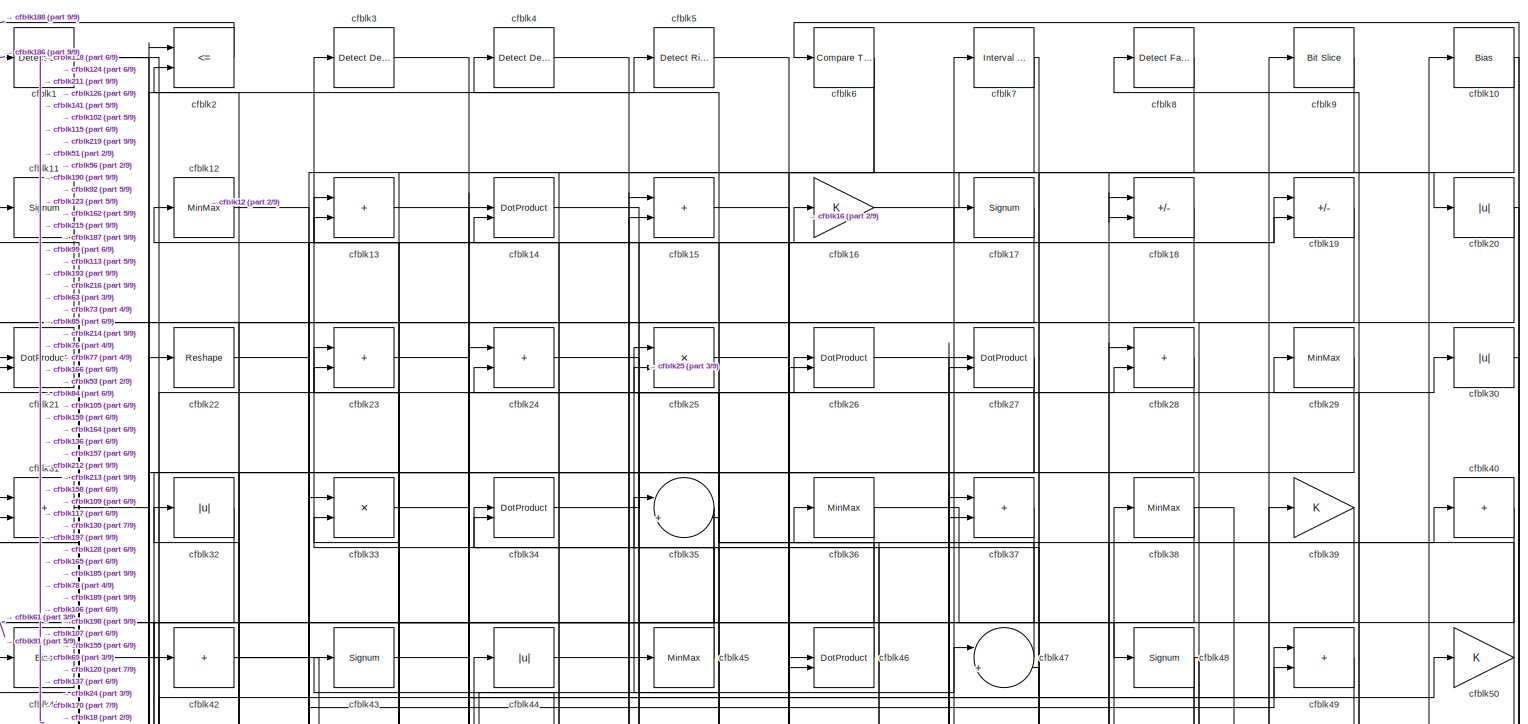
[diagram: root canvas - part 1/9, full width, top band]
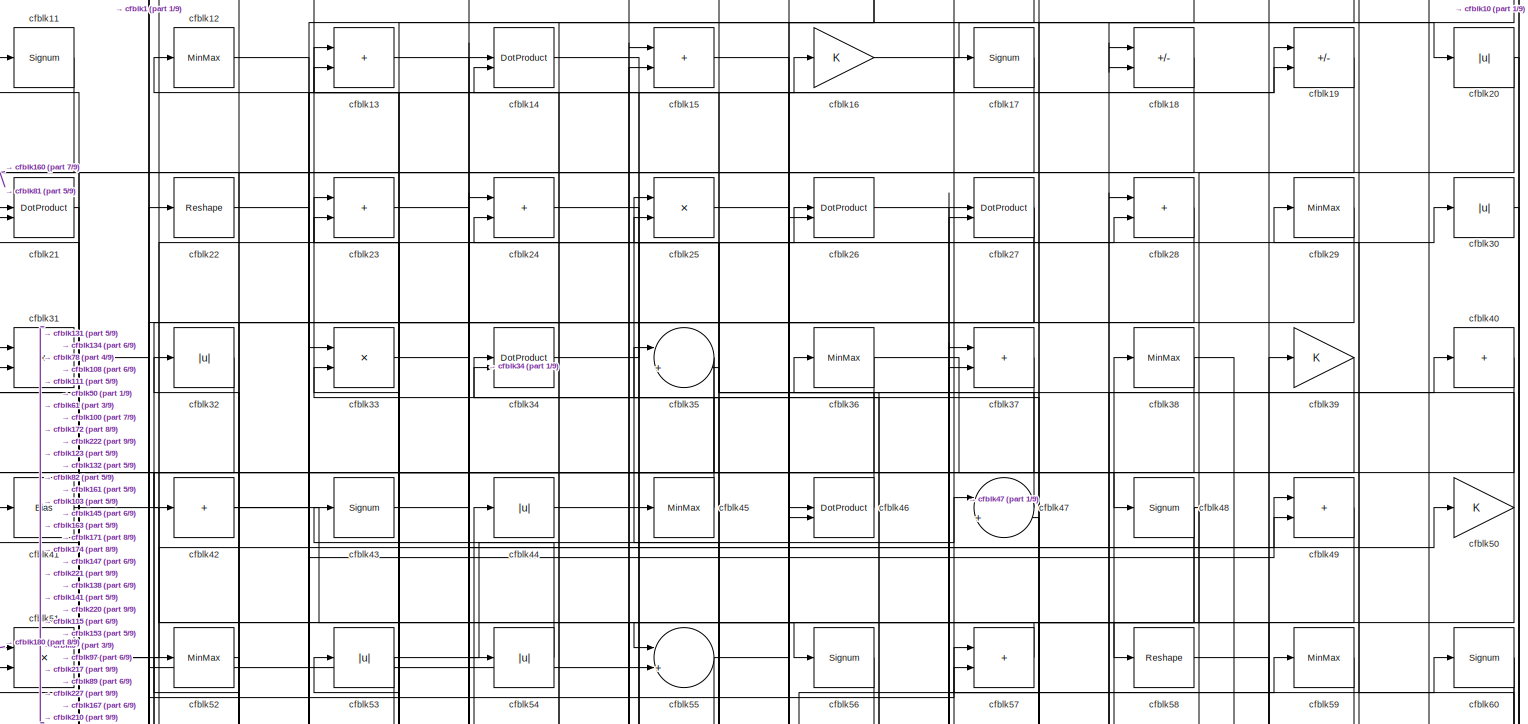
[diagram: root canvas - part 2/9, full width, top band]
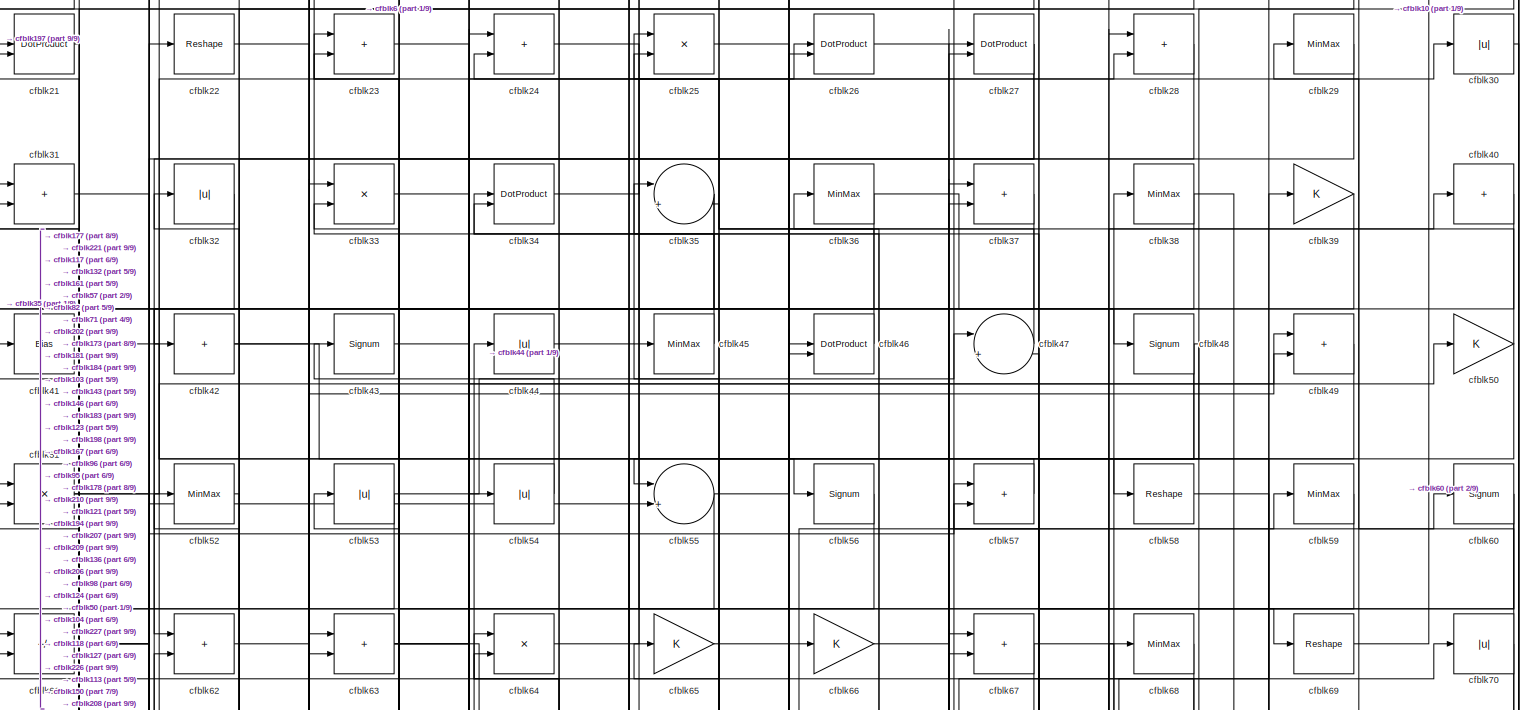
[diagram: root canvas - part 3/9, full width, top band]
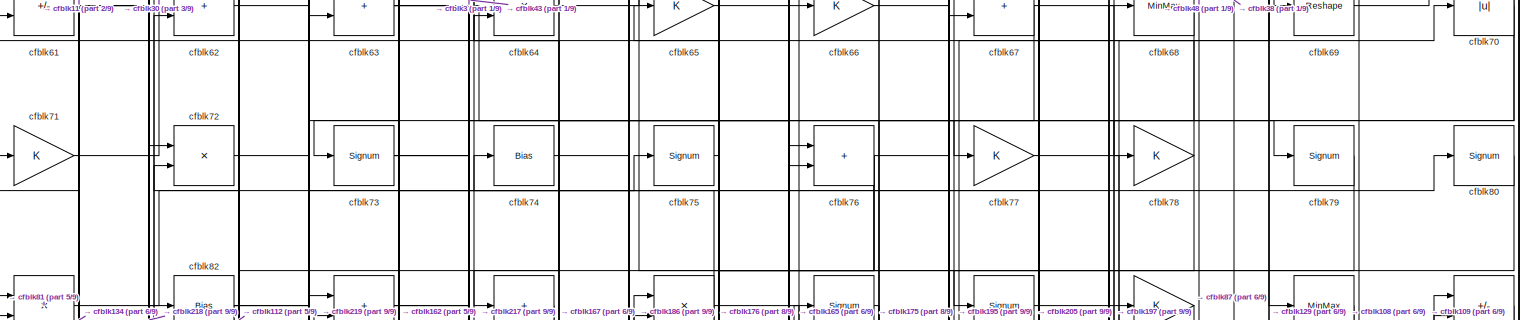
[diagram: root canvas - part 4/9, full width, top band]
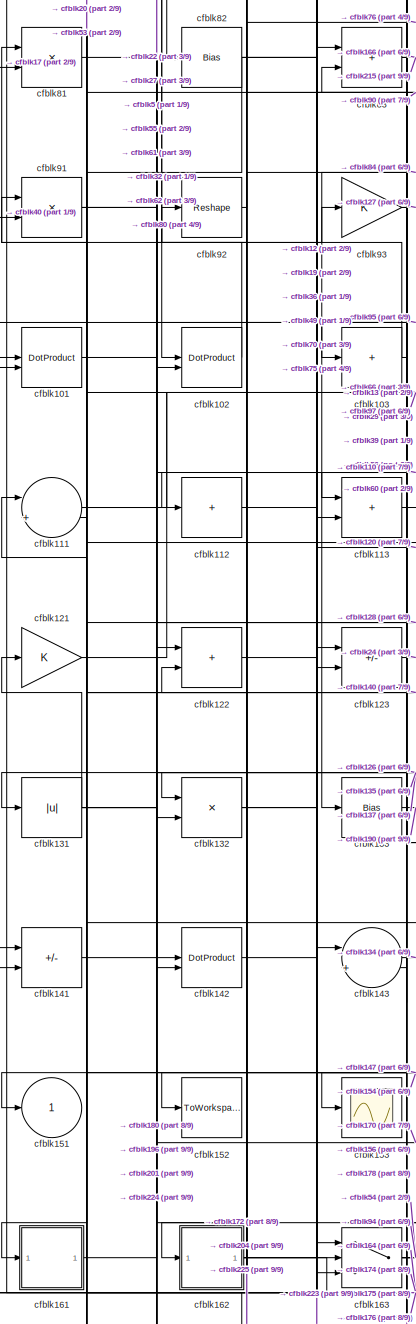
[diagram: root canvas - part 5/9, middle left region]
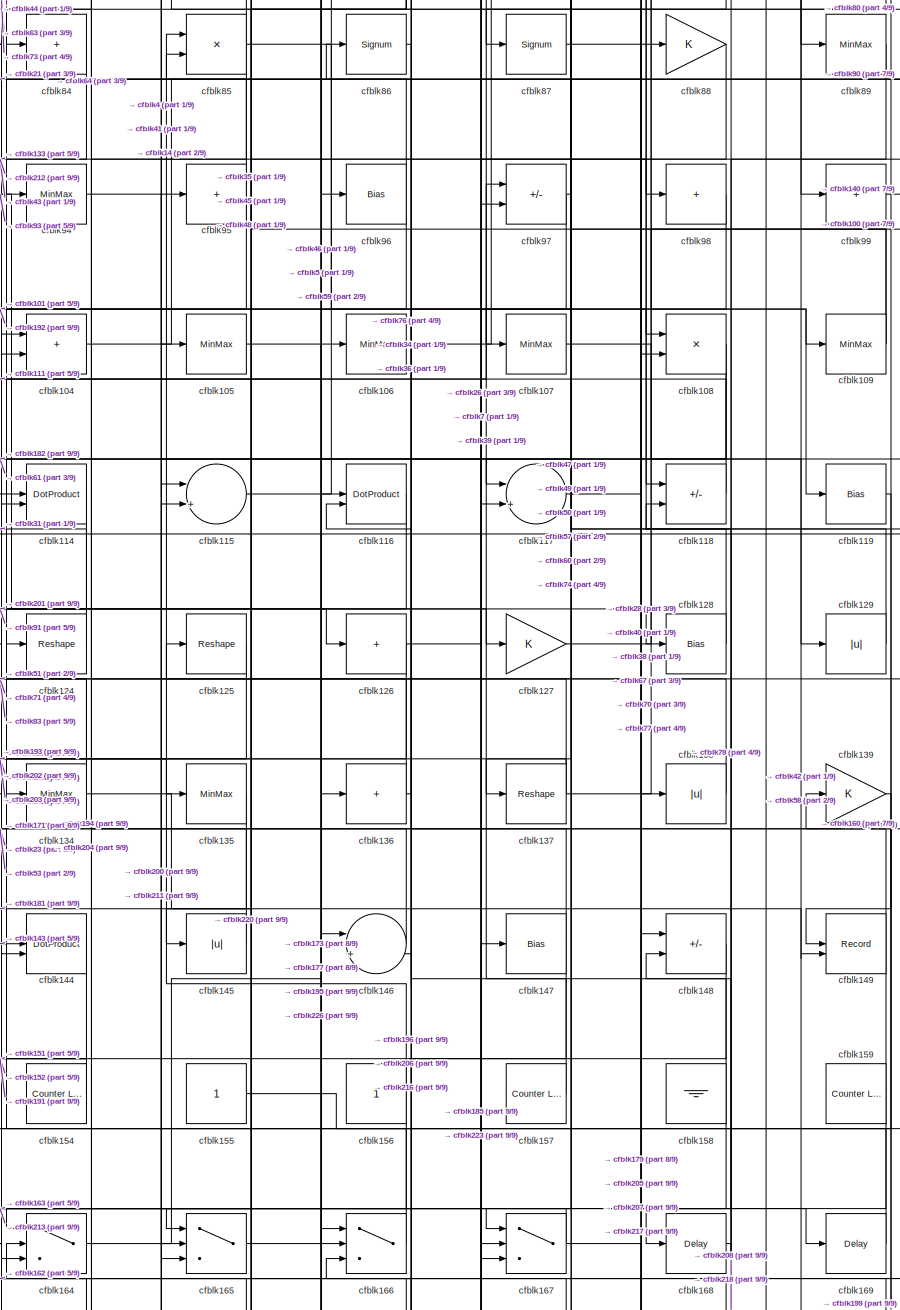
[diagram: root canvas - part 6/9, central region]
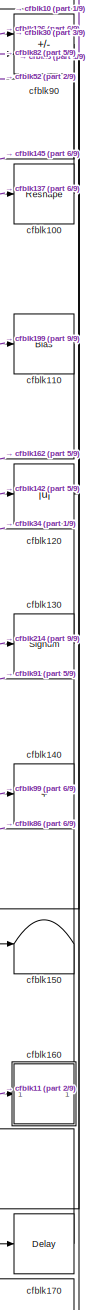
[diagram: root canvas - part 7/9, middle right region]
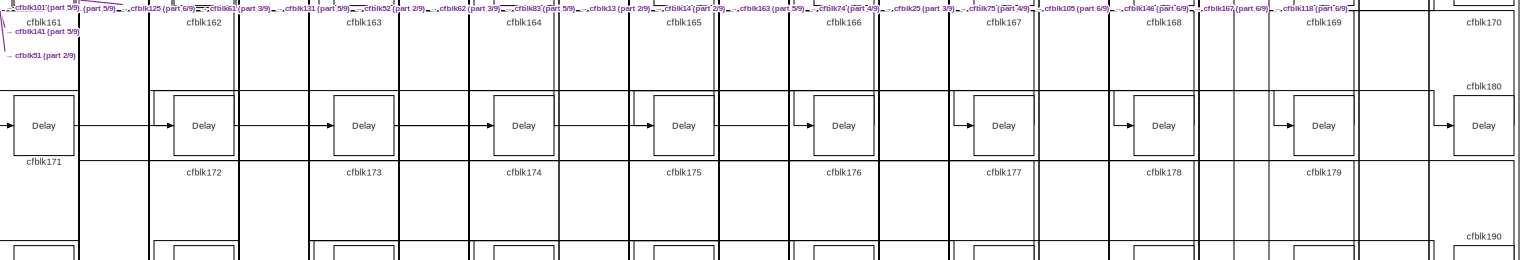
[diagram: root canvas - part 8/9, full width, bottom band]
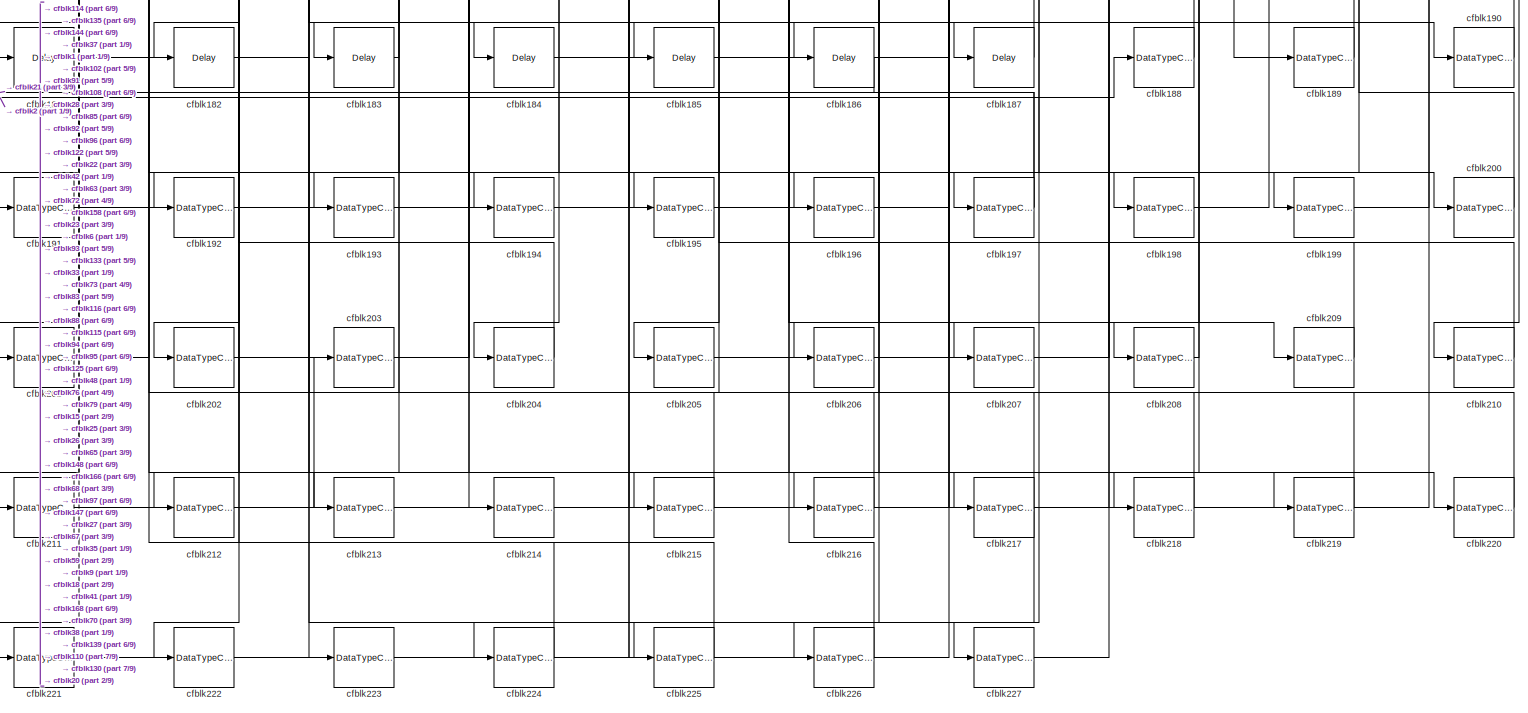
[diagram: root canvas - part 9/9, full width, bottom band]
MODEL slx_c87537b1d8b2
KIND model
CONFIG AbsTol = auto
CONFIG EnableMultiTasking = off
CONFIG FixedStep = auto
CONFIG MaxStep = auto
CONFIG MinStep = auto
CONFIG RelTol = 1e-3
CONFIG SampleTimeConstraint = Unconstrained
CONFIG SolverName = VariableStepAuto
CONFIG StartTime = 0.0
CONFIG StopTime = 10.0
BLOCK [Reference] cfblk1  REF=simulink/Logic and Bit
Operations/Detect
Decrease
  LibrarySourceBlock = hdlsllib/Logic and Bit\nOperations/Detect\nDecrease
  SourceBlock = simulink/Logic and Bit\nOperations/Detect\nDecrease
  SourceType = Detect Decrease
BLOCK [Bias] cfblk10
  Bias = 0.0
  SaturateOnIntegerOverflow = off
BLOCK [Reshape] cfblk100
BLOCK [DotProduct] cfblk101
  OutDataTypeStr = Inherit: Inherit via internal rule
BLOCK [DotProduct] cfblk102
  OutDataTypeStr = Inherit: Inherit via internal rule
BLOCK [Sum] cfblk103
  IconShape = rectangular
  Inputs = +
BLOCK [Sum] cfblk104
  IconShape = rectangular
BLOCK [MinMax] cfblk105
BLOCK [MinMax] cfblk106
BLOCK [MinMax] cfblk107
BLOCK [Product] cfblk108
  Inputs = */
  RndMeth = Zero
  SaturateOnIntegerOverflow = on
BLOCK [MinMax] cfblk109
BLOCK [Signum] cfblk11
BLOCK [Bias] cfblk110
  Bias = 0.0
  SaturateOnIntegerOverflow = off
BLOCK [Sum] cfblk111
  Inputs = |++
BLOCK [Sum] cfblk112
  IconShape = rectangular
  Inputs = +
BLOCK [Sum] cfblk113
  IconShape = rectangular
BLOCK [DotProduct] cfblk114
  OutDataTypeStr = Inherit: Inherit via internal rule
BLOCK [Sum] cfblk115
  Inputs = |++
BLOCK [DotProduct] cfblk116
  OutDataTypeStr = Inherit: Inherit via internal rule
BLOCK [Sum] cfblk117
  Inputs = |++
BLOCK [Sum] cfblk118
  IconShape = rectangular
  Inputs = +-
BLOCK [Bias] cfblk119
  Bias = 0.0
  SaturateOnIntegerOverflow = off
BLOCK [MinMax] cfblk12
BLOCK [Abs] cfblk120
  SaturateOnIntegerOverflow = off
BLOCK [Gain] cfblk121
BLOCK [Sum] cfblk122
  IconShape = rectangular
BLOCK [Sum] cfblk123
  IconShape = rectangular
  Inputs = +-
BLOCK [Reshape] cfblk124
BLOCK [Reshape] cfblk125
BLOCK [Sum] cfblk126
  IconShape = rectangular
  Inputs = +
BLOCK [Gain] cfblk127
BLOCK [Bias] cfblk128
  Bias = 0.0
  SaturateOnIntegerOverflow = off
BLOCK [Abs] cfblk129
  SaturateOnIntegerOverflow = off
BLOCK [Sum] cfblk13
  IconShape = rectangular
BLOCK [Signum] cfblk130
BLOCK [Abs] cfblk131
  SaturateOnIntegerOverflow = off
BLOCK [Product] cfblk132
  Inputs = */
  RndMeth = Zero
  SaturateOnIntegerOverflow = on
BLOCK [Bias] cfblk133
  Bias = 0.0
  SaturateOnIntegerOverflow = off
BLOCK [MinMax] cfblk134
BLOCK [MinMax] cfblk135
BLOCK [Sum] cfblk136
  IconShape = rectangular
  Inputs = +
BLOCK [Reshape] cfblk137
BLOCK [Abs] cfblk138
  SaturateOnIntegerOverflow = off
BLOCK [Gain] cfblk139
BLOCK [DotProduct] cfblk14
  OutDataTypeStr = Inherit: Inherit via internal rule
BLOCK [Sum] cfblk140
  IconShape = rectangular
  Inputs = +
BLOCK [Sum] cfblk141
  IconShape = rectangular
  Inputs = +-
BLOCK [DotProduct] cfblk142
  OutDataTypeStr = Inherit: Inherit via internal rule
BLOCK [Sum] cfblk143
  Inputs = |++
BLOCK [DotProduct] cfblk144
  OutDataTypeStr = Inherit: Inherit via internal rule
BLOCK [Abs] cfblk145
  SaturateOnIntegerOverflow = off
BLOCK [Sum] cfblk146
  Inputs = |++
BLOCK [Bias] cfblk147
  Bias = 0.0
  SaturateOnIntegerOverflow = off
BLOCK [Sum] cfblk148
  IconShape = rectangular
  Inputs = +-
BLOCK [Record] cfblk149
  CompatibilityTag = XY
  FileSettingsInternal = {"entries":[{"content":{"excelSettings":{"content":{},"type":"Streamout.ExcelSettings"}},"type":"Streamout.FileSettingStorage","uuid":""}],"packageUris":["http:\/\/schema.mathworks.com\/mf0\/streamout_blocks\/R2020a"],"version":"1.0"}
  Layout = [1 1]
  SignalsInternal = {"entries":[{"content":{"signals":[{"content":{"blockPath":[],"dimensions":[1],"domain":"","lineColor":"#a2142f","plots":[1],"port":1,"signalID":4068,"signalName":"XY Graph:1"},"type":"RecordBlkView.Signal","uuid":""},{"content":{"blockPath":[],"dimensions":[1],"domain":"","lineColor":"#139fff","plots":[1],"port":2,"signalID":4071,"signalName":"XY Graph:2"},"type":"RecordBlkView.Signal","uuid":""}...<+146ch>
  VisualizationBindings = {"xyplotplugin":{"info":[{"series":[{"bindingParametersList":[{"parameter":"X-Axis","signalID":4068,"signalName":"XY Graph:1"},{"parameter":"Y-Axis","signalID":4071,"signalName":"XY Graph:2"}],"seriesID":38091}],"subplotID":1}]}}
  st = -1
BLOCK [Sum] cfblk15
  IconShape = rectangular
BLOCK [Terminator] cfblk150
BLOCK [Outport] cfblk151
  VectorParamsAs1DForOutWhenUnconnected = off
BLOCK [ToWorkspace] cfblk152
  MaxDataPoints = inf
  SampleTime = -1
  SaveFormat = Timeseries
  VariableName = simout
BLOCK [Scope] cfblk153
  Floating = off
  NumInputPorts = 1
  ScopeSpecificationString = Simulink.scopes.TimeScopeBlockCfg('CurrentConfiguration', extmgr.ConfigurationSet(extmgr.Configuration('Core','General UI',true),extmgr.Configuration('Core','Source UI',true),extmgr.Configuration('Sources','WiredSimulink',true,'DataLoggingVariableName','ScopeData2','DataLoggingSaveFormat','Array','DataLoggingLimitDataPoints',true,'DataLoggingDecimation','1'),extmgr.Configuration('Visuals','Time Do...<+868ch>
BLOCK [Reference] cfblk154  REF=hdlsllib/Sources/Counter
Limited
  SourceBlock = hdlsllib/Sources/Counter\nLimited
  SourceType = Counter Limited
BLOCK [Constant] cfblk155
  SampleTime = -1
BLOCK [Constant] cfblk156
  SampleTime = -1
BLOCK [Reference] cfblk157  REF=hdlsllib/Sources/Counter
Limited
  SourceBlock = hdlsllib/Sources/Counter\nLimited
  SourceType = Counter Limited
BLOCK [Ground] cfblk158
BLOCK [Reference] cfblk159  REF=hdlsllib/Sources/Counter
Limited
  SourceBlock = hdlsllib/Sources/Counter\nLimited
  SourceType = Counter Limited
BLOCK [Gain] cfblk16
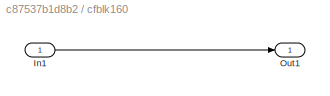
BLOCK [SubSystem] cfblk160
  LibrarySourceBlock = hdlsllib/Ports &\nSubsystems/Subsystem
BLOCK [Inport] cfblk160/In1
BLOCK [Outport] cfblk160/Out1
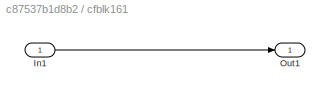
BLOCK [SubSystem] cfblk161
  LibrarySourceBlock = hdlsllib/Ports &\nSubsystems/Subsystem
BLOCK [Inport] cfblk161/In1
BLOCK [Outport] cfblk161/Out1
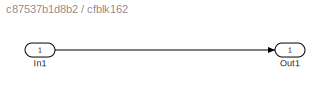
BLOCK [SubSystem] cfblk162
  LibrarySourceBlock = hdlsllib/Ports &\nSubsystems/Subsystem
BLOCK [Inport] cfblk162/In1
BLOCK [Outport] cfblk162/Out1
BLOCK [Switch] cfblk163
  InputSameDT = off
  SaturateOnIntegerOverflow = off
BLOCK [Switch] cfblk164
  InputSameDT = off
  SaturateOnIntegerOverflow = off
BLOCK [Switch] cfblk165
  InputSameDT = off
  SaturateOnIntegerOverflow = off
BLOCK [Switch] cfblk166
  InputSameDT = off
  SaturateOnIntegerOverflow = off
BLOCK [Switch] cfblk167
  InputSameDT = off
  SaturateOnIntegerOverflow = off
BLOCK [Delay] cfblk168
  InputPortMap = u0
  SampleTime = 1
BLOCK [Delay] cfblk169
  InputPortMap = u0
  SampleTime = 1
BLOCK [Signum] cfblk17
BLOCK [Delay] cfblk170
  InputPortMap = u0
  SampleTime = 1
BLOCK [Delay] cfblk171
  InputPortMap = u0
  SampleTime = 1
BLOCK [Delay] cfblk172
  InputPortMap = u0
  SampleTime = 1
BLOCK [Delay] cfblk173
  InputPortMap = u0
  SampleTime = 1
BLOCK [Delay] cfblk174
  InputPortMap = u0
  SampleTime = 1
BLOCK [Delay] cfblk175
  InputPortMap = u0
  SampleTime = 1
BLOCK [Delay] cfblk176
  InputPortMap = u0
  SampleTime = 1
BLOCK [Delay] cfblk177
  InputPortMap = u0
  SampleTime = 1
BLOCK [Delay] cfblk178
  InputPortMap = u0
  SampleTime = 1
BLOCK [Delay] cfblk179
  InputPortMap = u0
  SampleTime = 1
BLOCK [Sum] cfblk18
  IconShape = rectangular
  Inputs = +-
BLOCK [Delay] cfblk180
  InputPortMap = u0
  SampleTime = 1
BLOCK [Delay] cfblk181
  InputPortMap = u0
  SampleTime = 1
BLOCK [Delay] cfblk182
  InputPortMap = u0
  SampleTime = 1
BLOCK [Delay] cfblk183
  InputPortMap = u0
  SampleTime = 1
BLOCK [Delay] cfblk184
  InputPortMap = u0
  SampleTime = 1
BLOCK [Delay] cfblk185
  InputPortMap = u0
  SampleTime = 1
BLOCK [Delay] cfblk186
  InputPortMap = u0
  SampleTime = 1
BLOCK [Delay] cfblk187
  InputPortMap = u0
  SampleTime = 1
BLOCK [DataTypeConversion] cfblk188
  OutDataTypeStr = uint8
  RndMeth = Floor
  SaturateOnIntegerOverflow = off
BLOCK [DataTypeConversion] cfblk189
  OutDataTypeStr = uint8
  RndMeth = Floor
  SaturateOnIntegerOverflow = off
BLOCK [Sum] cfblk19
  IconShape = rectangular
  Inputs = +-
BLOCK [DataTypeConversion] cfblk190
  OutDataTypeStr = uint8
  RndMeth = Floor
  SaturateOnIntegerOverflow = off
BLOCK [DataTypeConversion] cfblk191
  OutDataTypeStr = uint8
  RndMeth = Floor
  SaturateOnIntegerOverflow = off
BLOCK [DataTypeConversion] cfblk192
  OutDataTypeStr = uint8
  RndMeth = Floor
  SaturateOnIntegerOverflow = off
BLOCK [DataTypeConversion] cfblk193
  OutDataTypeStr = uint8
  RndMeth = Floor
  SaturateOnIntegerOverflow = off
BLOCK [DataTypeConversion] cfblk194
  RndMeth = Floor
  SaturateOnIntegerOverflow = off
BLOCK [DataTypeConversion] cfblk195
  OutDataTypeStr = uint8
  RndMeth = Floor
  SaturateOnIntegerOverflow = off
BLOCK [DataTypeConversion] cfblk196
  OutDataTypeStr = uint8
  RndMeth = Floor
  SaturateOnIntegerOverflow = off
BLOCK [DataTypeConversion] cfblk197
  RndMeth = Floor
  SaturateOnIntegerOverflow = off
BLOCK [DataTypeConversion] cfblk198
  OutDataTypeStr = uint8
  RndMeth = Floor
  SaturateOnIntegerOverflow = off
BLOCK [DataTypeConversion] cfblk199
  OutDataTypeStr = uint8
  RndMeth = Floor
  SaturateOnIntegerOverflow = off
BLOCK [RelationalOperator] cfblk2
  InputSameDT = off
  Operator = <=
  OutDataTypeStr = boolean
BLOCK [Abs] cfblk20
  SaturateOnIntegerOverflow = off
BLOCK [DataTypeConversion] cfblk200
  OutDataTypeStr = uint8
  RndMeth = Floor
  SaturateOnIntegerOverflow = off
BLOCK [DataTypeConversion] cfblk201
  OutDataTypeStr = uint8
  RndMeth = Floor
  SaturateOnIntegerOverflow = off
BLOCK [DataTypeConversion] cfblk202
  OutDataTypeStr = uint8
  RndMeth = Floor
  SaturateOnIntegerOverflow = off
BLOCK [DataTypeConversion] cfblk203
  OutDataTypeStr = uint8
  RndMeth = Floor
  SaturateOnIntegerOverflow = off
BLOCK [DataTypeConversion] cfblk204
  OutDataTypeStr = uint8
  RndMeth = Floor
  SaturateOnIntegerOverflow = off
BLOCK [DataTypeConversion] cfblk205
  OutDataTypeStr = uint8
  RndMeth = Floor
  SaturateOnIntegerOverflow = off
BLOCK [DataTypeConversion] cfblk206
  OutDataTypeStr = uint8
  RndMeth = Floor
  SaturateOnIntegerOverflow = off
BLOCK [DataTypeConversion] cfblk207
  OutDataTypeStr = uint8
  RndMeth = Floor
  SaturateOnIntegerOverflow = off
BLOCK [DataTypeConversion] cfblk208
  OutDataTypeStr = uint8
  RndMeth = Floor
  SaturateOnIntegerOverflow = off
BLOCK [DataTypeConversion] cfblk209
  OutDataTypeStr = uint8
  RndMeth = Floor
  SaturateOnIntegerOverflow = off
BLOCK [DotProduct] cfblk21
  OutDataTypeStr = Inherit: Inherit via internal rule
BLOCK [DataTypeConversion] cfblk210
  OutDataTypeStr = uint8
  RndMeth = Floor
  SaturateOnIntegerOverflow = off
BLOCK [DataTypeConversion] cfblk211
  RndMeth = Floor
  SaturateOnIntegerOverflow = off
BLOCK [DataTypeConversion] cfblk212
  OutDataTypeStr = uint8
  RndMeth = Floor
  SaturateOnIntegerOverflow = off
BLOCK [DataTypeConversion] cfblk213
  OutDataTypeStr = uint8
  RndMeth = Floor
  SaturateOnIntegerOverflow = off
BLOCK [DataTypeConversion] cfblk214
  OutDataTypeStr = uint8
  RndMeth = Floor
  SaturateOnIntegerOverflow = off
BLOCK [DataTypeConversion] cfblk215
  OutDataTypeStr = uint8
  RndMeth = Floor
  SaturateOnIntegerOverflow = off
BLOCK [DataTypeConversion] cfblk216
  OutDataTypeStr = uint8
  RndMeth = Floor
  SaturateOnIntegerOverflow = off
BLOCK [DataTypeConversion] cfblk217
  RndMeth = Floor
  SaturateOnIntegerOverflow = off
BLOCK [DataTypeConversion] cfblk218
  OutDataTypeStr = uint8
  RndMeth = Floor
  SaturateOnIntegerOverflow = off
BLOCK [DataTypeConversion] cfblk219
  OutDataTypeStr = uint8
  RndMeth = Floor
  SaturateOnIntegerOverflow = off
BLOCK [Reshape] cfblk22
BLOCK [DataTypeConversion] cfblk220
  OutDataTypeStr = uint8
  RndMeth = Floor
  SaturateOnIntegerOverflow = off
BLOCK [DataTypeConversion] cfblk221
  OutDataTypeStr = uint8
  RndMeth = Floor
  SaturateOnIntegerOverflow = off
BLOCK [DataTypeConversion] cfblk222
  OutDataTypeStr = uint8
  RndMeth = Floor
  SaturateOnIntegerOverflow = off
BLOCK [DataTypeConversion] cfblk223
  OutDataTypeStr = uint8
  RndMeth = Floor
  SaturateOnIntegerOverflow = off
BLOCK [DataTypeConversion] cfblk224
  OutDataTypeStr = uint8
  RndMeth = Floor
  SaturateOnIntegerOverflow = off
BLOCK [DataTypeConversion] cfblk225
  OutDataTypeStr = uint8
  RndMeth = Floor
  SaturateOnIntegerOverflow = off
BLOCK [DataTypeConversion] cfblk226
  OutDataTypeStr = uint8
  RndMeth = Floor
  SaturateOnIntegerOverflow = off
BLOCK [DataTypeConversion] cfblk227
  OutDataTypeStr = uint8
  RndMeth = Floor
  SaturateOnIntegerOverflow = off
BLOCK [Sum] cfblk23
  IconShape = rectangular
BLOCK [Sum] cfblk24
  IconShape = rectangular
BLOCK [Product] cfblk25
  Inputs = */
  RndMeth = Zero
  SaturateOnIntegerOverflow = on
BLOCK [DotProduct] cfblk26
  OutDataTypeStr = Inherit: Inherit via internal rule
BLOCK [DotProduct] cfblk27
  OutDataTypeStr = Inherit: Inherit via internal rule
BLOCK [Sum] cfblk28
  IconShape = rectangular
BLOCK [MinMax] cfblk29
BLOCK [Reference] cfblk3  REF=simulink/Logic and Bit
Operations/Detect
Decrease
  LibrarySourceBlock = hdlsllib/Logic and Bit\nOperations/Detect\nDecrease
  SourceBlock = simulink/Logic and Bit\nOperations/Detect\nDecrease
  SourceType = Detect Decrease
BLOCK [Abs] cfblk30
  SaturateOnIntegerOverflow = off
BLOCK [Sum] cfblk31
  IconShape = rectangular
BLOCK [Abs] cfblk32
  SaturateOnIntegerOverflow = off
BLOCK [Product] cfblk33
  Inputs = */
  RndMeth = Zero
  SaturateOnIntegerOverflow = on
BLOCK [DotProduct] cfblk34
  OutDataTypeStr = Inherit: Inherit via internal rule
BLOCK [Sum] cfblk35
  Inputs = |++
BLOCK [MinMax] cfblk36
BLOCK [Sum] cfblk37
  IconShape = rectangular
BLOCK [MinMax] cfblk38
BLOCK [Gain] cfblk39
BLOCK [Reference] cfblk4  REF=simulink/Logic and Bit
Operations/Detect
Decrease
  LibrarySourceBlock = hdlsllib/Logic and Bit\nOperations/Detect\nDecrease
  SourceBlock = simulink/Logic and Bit\nOperations/Detect\nDecrease
  SourceType = Detect Decrease
BLOCK [Sum] cfblk40
  IconShape = rectangular
  Inputs = +
BLOCK [Bias] cfblk41
  Bias = 0.0
  SaturateOnIntegerOverflow = off
BLOCK [Sum] cfblk42
  IconShape = rectangular
  Inputs = +
BLOCK [Signum] cfblk43
BLOCK [Abs] cfblk44
  SaturateOnIntegerOverflow = off
BLOCK [MinMax] cfblk45
BLOCK [DotProduct] cfblk46
  OutDataTypeStr = Inherit: Inherit via internal rule
BLOCK [Sum] cfblk47
  Inputs = |++
BLOCK [Signum] cfblk48
BLOCK [Sum] cfblk49
  IconShape = rectangular
BLOCK [Reference] cfblk5  REF=hdlsllib/Logic and Bit
Operations/Detect Rise
Nonnegative
  SourceBlock = hdlsllib/Logic and Bit\nOperations/Detect Rise\nNonnegative
  SourceType = Detect Rise Nonnegative
BLOCK [Gain] cfblk50
BLOCK [Product] cfblk51
  Inputs = */
  RndMeth = Zero
  SaturateOnIntegerOverflow = on
BLOCK [MinMax] cfblk52
BLOCK [Abs] cfblk53
  SaturateOnIntegerOverflow = off
BLOCK [Abs] cfblk54
  SaturateOnIntegerOverflow = off
BLOCK [Sum] cfblk55
  Inputs = |++
BLOCK [Signum] cfblk56
BLOCK [Sum] cfblk57
  IconShape = rectangular
BLOCK [Reshape] cfblk58
BLOCK [MinMax] cfblk59
BLOCK [Reference] cfblk6  REF=hdlsllib/Logic and Bit
Operations/Compare
To Constant
  SourceBlock = hdlsllib/Logic and Bit\nOperations/Compare\nTo Constant
  SourceType = Compare To Constant
BLOCK [Signum] cfblk60
BLOCK [Sum] cfblk61
  IconShape = rectangular
  Inputs = +-
BLOCK [Sum] cfblk62
  IconShape = rectangular
BLOCK [Sum] cfblk63
  IconShape = rectangular
BLOCK [Product] cfblk64
  Inputs = */
  RndMeth = Zero
  SaturateOnIntegerOverflow = on
BLOCK [Gain] cfblk65
BLOCK [Gain] cfblk66
BLOCK [Sum] cfblk67
  IconShape = rectangular
BLOCK [MinMax] cfblk68
BLOCK [Reshape] cfblk69
BLOCK [Reference] cfblk7  REF=hdlsllib/Logic and Bit
Operations/Interval Test
  SourceBlock = hdlsllib/Logic and Bit\nOperations/Interval Test
  SourceType = Interval Test
BLOCK [Abs] cfblk70
  SaturateOnIntegerOverflow = off
BLOCK [Gain] cfblk71
BLOCK [Product] cfblk72
  Inputs = */
  RndMeth = Zero
  SaturateOnIntegerOverflow = on
BLOCK [Signum] cfblk73
BLOCK [Bias] cfblk74
  Bias = 0.0
  SaturateOnIntegerOverflow = off
BLOCK [Signum] cfblk75
BLOCK [Sum] cfblk76
  IconShape = rectangular
BLOCK [Gain] cfblk77
BLOCK [Gain] cfblk78
BLOCK [Signum] cfblk79
BLOCK [Reference] cfblk8  REF=hdlsllib/Logic and Bit
Operations/Detect Fall
Negative
  SourceBlock = hdlsllib/Logic and Bit\nOperations/Detect Fall\nNegative
  SourceType = Detect Fall Negative
BLOCK [Signum] cfblk80
BLOCK [Product] cfblk81
  Inputs = */
  RndMeth = Zero
  SaturateOnIntegerOverflow = on
BLOCK [Bias] cfblk82
  Bias = 0.0
  SaturateOnIntegerOverflow = off
BLOCK [Sum] cfblk83
  IconShape = rectangular
BLOCK [Sum] cfblk84
  IconShape = rectangular
  Inputs = +
BLOCK [Product] cfblk85
  Inputs = */
  RndMeth = Zero
  SaturateOnIntegerOverflow = on
BLOCK [Signum] cfblk86
BLOCK [Signum] cfblk87
BLOCK [Gain] cfblk88
BLOCK [MinMax] cfblk89
BLOCK [Reference] cfblk9  REF=hdlsllib/Logic and Bit
Operations/Bit Slice
  SourceBlock = hdlsllib/Logic and Bit\nOperations/Bit Slice
  SourceType = Bit Slice
BLOCK [Sum] cfblk90
  IconShape = rectangular
  Inputs = +-
BLOCK [Product] cfblk91
  Inputs = */
  RndMeth = Zero
  SaturateOnIntegerOverflow = on
BLOCK [Reshape] cfblk92
BLOCK [Gain] cfblk93
BLOCK [MinMax] cfblk94
BLOCK [Sum] cfblk95
  IconShape = rectangular
  Inputs = +
BLOCK [Bias] cfblk96
  Bias = 0.0
  SaturateOnIntegerOverflow = off
BLOCK [Sum] cfblk97
  IconShape = rectangular
  Inputs = +-
BLOCK [Sum] cfblk98
  IconShape = rectangular
  Inputs = +
BLOCK [Sum] cfblk99
  IconShape = rectangular
  Inputs = +
LINE cfblk100:1 -> cfblk52:1
LINE cfblk101:1 -> cfblk93:1
LINE cfblk102:1 -> cfblk81:1
NET cfblk103:1 -> cfblk13:2, cfblk62:2
LINE cfblk104:1 -> cfblk28:1
LINE cfblk105:1 -> cfblk177:1
LINE cfblk106:1 -> cfblk39:1
LINE cfblk107:1 -> cfblk129:1
NET cfblk108:1 -> cfblk165:3, cfblk182:1
NET cfblk109:1 -> cfblk35:1, cfblk47:2
NET cfblk10:1 -> cfblk170:1, cfblk18:2
LINE cfblk110:1 -> cfblk162:1
NET cfblk111:1 -> cfblk55:2, cfblk97:1
LINE cfblk112:1 -> cfblk143:1
LINE cfblk113:1 -> cfblk49:1
LINE cfblk114:1 -> cfblk201:1
LINE cfblk115:1 -> cfblk59:1
LINE cfblk116:1 -> cfblk194:1
LINE cfblk117:1 -> cfblk40:1
LINE cfblk118:1 -> cfblk31:2
LINE cfblk119:1 -> cfblk149:1
LINE cfblk11:1 -> cfblk160:1
LINE cfblk120:1 -> cfblk6:1
LINE cfblk121:1 -> cfblk66:1
LINE cfblk122:1 -> cfblk223:1
LINE cfblk123:1 -> cfblk24:1
LINE cfblk124:1 -> cfblk31:1
LINE cfblk125:1 -> cfblk171:1
NET cfblk126:1 -> cfblk142:2, cfblk90:1
LINE cfblk127:1 -> cfblk70:1
LINE cfblk128:1 -> cfblk38:1
LINE cfblk129:1 -> cfblk74:1
LINE cfblk12:1 -> cfblk123:1
LINE cfblk130:1 -> cfblk34:2
NET cfblk131:1 -> cfblk121:1, cfblk135:1, cfblk163:2, cfblk180:1
NET cfblk132:1 -> cfblk163:1, cfblk19:2
LINE cfblk133:1 -> cfblk190:1
NET cfblk134:1 -> cfblk149:2, cfblk51:2, cfblk71:1
LINE cfblk135:1 -> cfblk181:1
NET cfblk136:1 -> cfblk36:1, cfblk64:1
NET cfblk137:1 -> cfblk100:1, cfblk132:1, cfblk83:2
LINE cfblk138:1 -> cfblk85:2
LINE cfblk139:1 -> cfblk199:1
LINE cfblk13:1 -> cfblk174:1
LINE cfblk140:1 -> cfblk91:1
LINE cfblk141:1 -> cfblk5:1
LINE cfblk142:1 -> cfblk120:1
LINE cfblk143:1 -> cfblk134:1
LINE cfblk144:1 -> cfblk191:1
LINE cfblk145:1 -> cfblk53:1
LINE cfblk146:1 -> cfblk23:1
NET cfblk147:1 -> cfblk14:2, cfblk152:1
LINE cfblk148:1 -> cfblk206:1
LINE cfblk14:1 -> cfblk138:1
LINE cfblk154:1 -> cfblk151:1
LINE cfblk155:1 -> cfblk8:1
NET cfblk156:1 -> cfblk163:3, cfblk85:1
LINE cfblk157:1 -> cfblk34:1
NET cfblk158:1 -> cfblk213:1, cfblk7:1
NET cfblk159:1 -> cfblk164:3, cfblk45:1
LINE cfblk15:1 -> cfblk220:1
LINE cfblk160/In1:1 -> cfblk160/Out1:1
LINE cfblk160:1 -> cfblk86:1
LINE cfblk161/In1:1 -> cfblk161/Out1:1
LINE cfblk161:1 -> cfblk22:1
LINE cfblk162/In1:1 -> cfblk162/Out1:1
NET cfblk162:1 -> cfblk164:2, cfblk49:2, cfblk75:1
NET cfblk163:1 -> cfblk178:1, cfblk54:1, cfblk94:1
LINE cfblk164:1 -> cfblk46:1
LINE cfblk165:1 -> cfblk106:1
LINE cfblk166:1 -> cfblk44:1
NET cfblk167:1 -> cfblk164:1, cfblk179:1
LINE cfblk168:1 -> cfblk218:1
LINE cfblk169:1 -> cfblk104:1
LINE cfblk16:1 -> cfblk20:1
LINE cfblk170:1 -> cfblk142:1
LINE cfblk171:1 -> cfblk14:1
LINE cfblk172:1 -> cfblk111:1
LINE cfblk173:1 -> cfblk146:1
LINE cfblk174:1 -> cfblk83:1
LINE cfblk175:1 -> cfblk101:1
LINE cfblk176:1 -> cfblk141:1
LINE cfblk177:1 -> cfblk61:2
LINE cfblk178:1 -> cfblk25:2
LINE cfblk179:1 -> cfblk118:2
LINE cfblk17:1 -> cfblk81:2
LINE cfblk180:1 -> cfblk51:1
LINE cfblk181:1 -> cfblk63:1
LINE cfblk182:1 -> cfblk225:1
LINE cfblk183:1 -> cfblk23:2
LINE cfblk184:1 -> cfblk67:1
LINE cfblk185:1 -> cfblk97:2
LINE cfblk186:1 -> cfblk1:1
LINE cfblk187:1 -> cfblk35:2
LINE cfblk188:1 -> cfblk41:1
LINE cfblk189:1 -> cfblk2:1
LINE cfblk18:1 -> cfblk222:1
LINE cfblk190:1 -> cfblk2:2
LINE cfblk191:1 -> cfblk95:1
LINE cfblk192:1 -> cfblk144:1
LINE cfblk193:1 -> cfblk144:2
NET cfblk194:1 -> cfblk26:2, cfblk67:2
LINE cfblk195:1 -> cfblk116:1
LINE cfblk196:1 -> cfblk116:2
NET cfblk197:1 -> cfblk21:1, cfblk76:1
LINE cfblk198:1 -> cfblk9:1
LINE cfblk199:1 -> cfblk110:1
LINE cfblk19:1 -> cfblk58:1
NET cfblk1:1 -> cfblk219:1, cfblk56:1
LINE cfblk200:1 -> cfblk139:1
LINE cfblk201:1 -> cfblk102:2
LINE cfblk202:1 -> cfblk114:1
LINE cfblk203:1 -> cfblk114:2
LINE cfblk204:1 -> cfblk92:1
LINE cfblk205:1 -> cfblk88:1
LINE cfblk206:1 -> cfblk27:2
LINE cfblk207:1 -> cfblk148:1
LINE cfblk208:1 -> cfblk148:2
LINE cfblk209:1 -> cfblk27:1
NET cfblk20:1 -> cfblk131:1, cfblk210:1
LINE cfblk210:1 -> cfblk65:1
NET cfblk211:1 -> cfblk115:2, cfblk203:1
LINE cfblk212:1 -> cfblk37:1
LINE cfblk213:1 -> cfblk37:2
LINE cfblk214:1 -> cfblk130:1
LINE cfblk215:1 -> cfblk33:1
LINE cfblk216:1 -> cfblk33:2
NET cfblk217:1 -> cfblk166:3, cfblk18:1, cfblk224:1
LINE cfblk218:1 -> cfblk72:1
LINE cfblk219:1 -> cfblk72:2
LINE cfblk21:1 -> cfblk221:1
LINE cfblk220:1 -> cfblk125:1
LINE cfblk221:1 -> cfblk15:1
LINE cfblk222:1 -> cfblk15:2
LINE cfblk223:1 -> cfblk147:1
LINE cfblk224:1 -> cfblk122:1
LINE cfblk225:1 -> cfblk122:2
LINE cfblk226:1 -> cfblk166:1
LINE cfblk227:1 -> cfblk68:1
LINE cfblk22:1 -> cfblk184:1
LINE cfblk23:1 -> cfblk198:1
LINE cfblk24:1 -> cfblk69:1
LINE cfblk25:1 -> cfblk207:1
LINE cfblk26:1 -> cfblk98:1
NET cfblk27:1 -> cfblk132:2, cfblk62:1
LINE cfblk28:1 -> cfblk202:1
LINE cfblk29:1 -> cfblk143:2
LINE cfblk2:1 -> cfblk188:1
LINE cfblk30:1 -> cfblk150:1
LINE cfblk31:1 -> cfblk126:1
LINE cfblk32:1 -> cfblk102:1
LINE cfblk33:1 -> cfblk214:1
LINE cfblk34:1 -> cfblk16:1
NET cfblk35:1 -> cfblk42:1, cfblk61:1
NET cfblk36:1 -> cfblk123:2, cfblk48:1
LINE cfblk37:1 -> cfblk211:1
NET cfblk38:1 -> cfblk189:1, cfblk73:1
LINE cfblk39:1 -> cfblk113:1
LINE cfblk3:1 -> cfblk76:2
LINE cfblk40:1 -> cfblk91:2
LINE cfblk41:1 -> cfblk115:1
NET cfblk42:1 -> cfblk187:1, cfblk99:1
LINE cfblk43:1 -> cfblk77:1
LINE cfblk44:1 -> cfblk25:1
LINE cfblk45:1 -> cfblk3:1
LINE cfblk46:1 -> cfblk4:1
LINE cfblk47:1 -> cfblk12:1
NET cfblk48:1 -> cfblk165:2, cfblk185:1, cfblk78:1
LINE cfblk49:1 -> cfblk107:1
LINE cfblk4:1 -> cfblk105:1
NET cfblk50:1 -> cfblk137:1, cfblk24:2
NET cfblk51:1 -> cfblk108:1, cfblk50:1
LINE cfblk52:1 -> cfblk172:1
NET cfblk53:1 -> cfblk161:1, cfblk47:1
LINE cfblk54:1 -> cfblk13:1
NET cfblk55:1 -> cfblk141:2, cfblk17:1
LINE cfblk56:1 -> cfblk153:1
LINE cfblk57:1 -> cfblk55:1
LINE cfblk58:1 -> cfblk89:1
LINE cfblk59:1 -> cfblk227:1
LINE cfblk5:1 -> cfblk136:1
NET cfblk60:1 -> cfblk103:1, cfblk167:1
NET cfblk61:1 -> cfblk117:2, cfblk57:2, cfblk82:1
LINE cfblk62:1 -> cfblk173:1
NET cfblk63:1 -> cfblk167:3, cfblk28:2, cfblk96:1
LINE cfblk64:1 -> cfblk26:1
LINE cfblk65:1 -> cfblk209:1
LINE cfblk66:1 -> cfblk60:1
NET cfblk67:1 -> cfblk118:1, cfblk124:1
LINE cfblk68:1 -> cfblk226:1
LINE cfblk69:1 -> cfblk10:1
NET cfblk6:1 -> cfblk193:1, cfblk63:2
NET cfblk70:1 -> cfblk113:2, cfblk208:1, cfblk29:1
LINE cfblk71:1 -> cfblk30:1
LINE cfblk72:1 -> cfblk217:1
NET cfblk73:1 -> cfblk167:2, cfblk186:1
LINE cfblk74:1 -> cfblk176:1
LINE cfblk75:1 -> cfblk175:1
NET cfblk76:1 -> cfblk112:1, cfblk165:1, cfblk205:1, cfblk79:1
LINE cfblk77:1 -> cfblk109:1
NET cfblk78:1 -> cfblk108:2, cfblk11:1
LINE cfblk79:1 -> cfblk195:1
NET cfblk7:1 -> cfblk117:1, cfblk84:1
LINE cfblk80:1 -> cfblk87:1
LINE cfblk81:1 -> cfblk80:1
NET cfblk82:1 -> cfblk111:2, cfblk19:1, cfblk90:2
NET cfblk83:1 -> cfblk166:2, cfblk215:1
LINE cfblk84:1 -> cfblk133:1
NET cfblk85:1 -> cfblk119:1, cfblk212:1, cfblk43:1
LINE cfblk86:1 -> cfblk146:2
LINE cfblk87:1 -> cfblk169:1
LINE cfblk88:1 -> cfblk204:1
LINE cfblk89:1 -> cfblk168:1
LINE cfblk8:1 -> cfblk46:2
LINE cfblk90:1 -> cfblk145:1
NET cfblk91:1 -> cfblk128:1, cfblk196:1
LINE cfblk92:1 -> cfblk32:1
NET cfblk93:1 -> cfblk127:1, cfblk183:1
LINE cfblk94:1 -> cfblk200:1
NET cfblk95:1 -> cfblk101:2, cfblk64:2
NET cfblk96:1 -> cfblk192:1, cfblk21:2
NET cfblk97:1 -> cfblk216:1, cfblk57:1
LINE cfblk98:1 -> cfblk104:2
LINE cfblk99:1 -> cfblk140:1
LINE cfblk9:1 -> cfblk197:1
note: NET lines group one-source signal fan-out (src -> all destinations, sorted); 1:1 wires keep LINE
